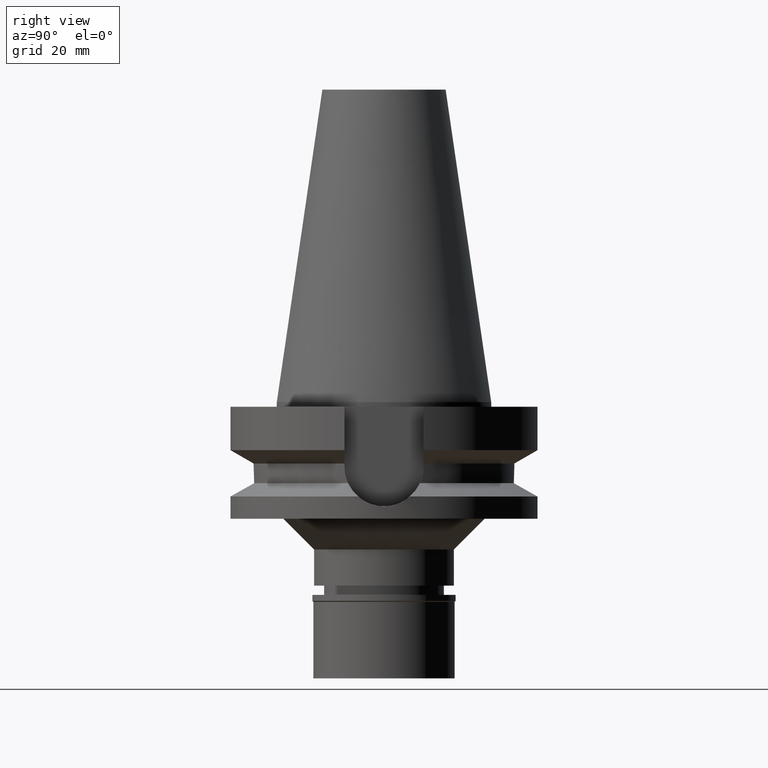
[diagram: clean part render]
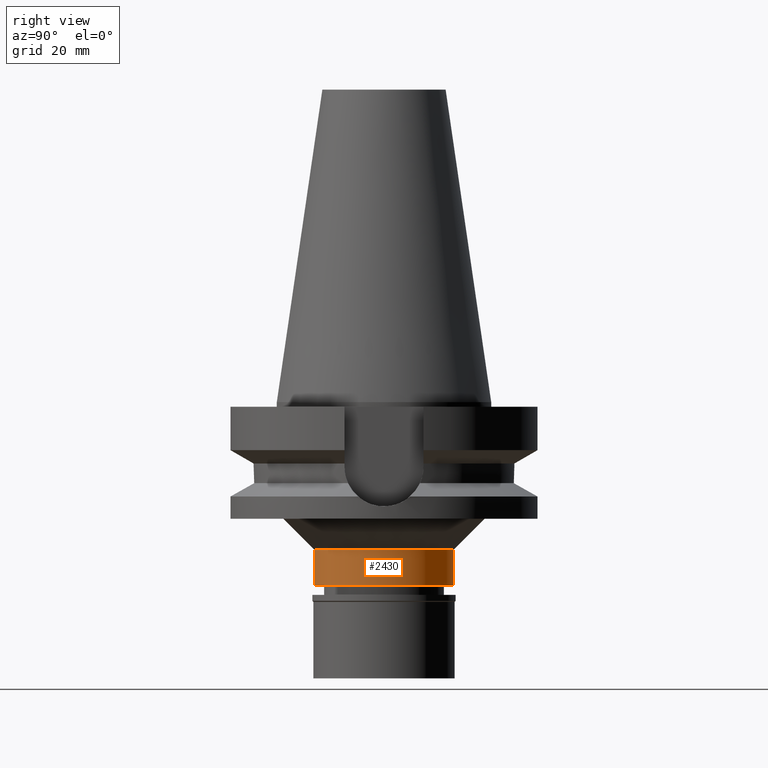
[diagram: same view with one face highlighted and labeled with its STEP entity id]
A machine part, right view. The second image highlights one B-rep face of the part: STEP entity #2430.
In plain terms, the highlighted cylindrical surface (partial cylindrical patch) has radius 22.75 mm, axis along (0, 0, -1).
Its self-contained STEP definition (entity closure, byte-faithful):
#55 = CARTESIAN_POINT ( 'NONE',  ( 0.0000000000000000000, 22.75000000000000000, -59.79999999999999716 ) ) ;
#96 = DIRECTION ( 'NONE',  ( 0.0000000000000000000, -1.000000000000000000, 0.0000000000000000000 ) ) ;
#115 = CARTESIAN_POINT ( 'NONE',  ( 0.0000000000000000000, -22.75000000000000000, -59.79999999999999716 ) ) ;
#116 = EDGE_CURVE ( 'NONE', #140, #2471, #1651, .T. ) ;
#140 = VERTEX_POINT ( 'NONE', #2601 ) ;
#213 = ORIENTED_EDGE ( 'NONE', *, *, #3009, .T. ) ;
#311 = VERTEX_POINT ( 'NONE', #115 ) ;
#406 = LINE ( 'NONE', #2068, #2109 ) ;
#519 = VECTOR ( 'NONE', #839, 1000.000000000000000 ) ;
#562 = EDGE_CURVE ( 'NONE', #2471, #311, #406, .T. ) ;
#589 = CARTESIAN_POINT ( 'NONE',  ( 0.0000000000000000000, 22.75000000000000000, -48.00000000000000000 ) ) ;
#698 = EDGE_CURVE ( 'NONE', #140, #1531, #1588, .T. ) ;
#831 = AXIS2_PLACEMENT_3D ( 'NONE', #2673, #2210, #96 ) ;
#839 = DIRECTION ( 'NONE',  ( 0.0000000000000000000, 0.0000000000000000000, -1.000000000000000000 ) ) ;
#1118 = ORIENTED_EDGE ( 'NONE', *, *, #562, .T. ) ;
#1142 = DIRECTION ( 'NONE',  ( 0.0000000000000000000, 0.0000000000000000000, -1.000000000000000000 ) ) ;
#1247 = CYLINDRICAL_SURFACE ( 'NONE', #831, 22.75000000000000000 ) ;
#1360 = AXIS2_PLACEMENT_3D ( 'NONE', #1797, #2510, #2966 ) ;
#1531 = VERTEX_POINT ( 'NONE', #55 ) ;
#1583 = EDGE_LOOP ( 'NONE', ( #1923, #1118, #213, #1947 ) ) ;
#1588 = LINE ( 'NONE', #589, #519 ) ;
#1651 = CIRCLE ( 'NONE', #2362, 22.75000000000000000 ) ;
#1797 = CARTESIAN_POINT ( 'NONE',  ( 0.0000000000000000000, 2.582045311321999724E-14, -59.79999999999999716 ) ) ;
#1898 = CARTESIAN_POINT ( 'NONE',  ( 0.0000000000000000000, 0.0000000000000000000, -48.00000000000000000 ) ) ;
#1923 = ORIENTED_EDGE ( 'NONE', *, *, #116, .T. ) ;
#1947 = ORIENTED_EDGE ( 'NONE', *, *, #698, .F. ) ;
#1949 = CARTESIAN_POINT ( 'NONE',  ( 0.0000000000000000000, -22.75000000000000000, -48.00000000000000000 ) ) ;
#2068 = CARTESIAN_POINT ( 'NONE',  ( 0.0000000000000000000, -22.75000000000000000, -48.00000000000000000 ) ) ;
#2109 = VECTOR ( 'NONE', #1142, 1000.000000000000000 ) ;
#2210 = DIRECTION ( 'NONE',  ( 0.0000000000000000000, 0.0000000000000000000, -1.000000000000000000 ) ) ;
#2360 = DIRECTION ( 'NONE',  ( 0.0000000000000000000, 0.0000000000000000000, -1.000000000000000000 ) ) ;
#2362 = AXIS2_PLACEMENT_3D ( 'NONE', #1898, #2360, #2856 ) ;
#2430 = ADVANCED_FACE ( 'NONE', ( #2881 ), #1247, .T. ) ;
#2471 = VERTEX_POINT ( 'NONE', #1949 ) ;
#2510 = DIRECTION ( 'NONE',  ( 0.0000000000000000000, 0.0000000000000000000, 1.000000000000000000 ) ) ;
#2513 = CIRCLE ( 'NONE', #1360, 22.75000000000000000 ) ;
#2601 = CARTESIAN_POINT ( 'NONE',  ( 0.0000000000000000000, 22.75000000000000000, -48.00000000000000000 ) ) ;
#2673 = CARTESIAN_POINT ( 'NONE',  ( 0.0000000000000000000, 2.582045311321999724E-14, 110.8399999999999892 ) ) ;
#2856 = DIRECTION ( 'NONE',  ( 0.0000000000000000000, 1.000000000000000000, 0.0000000000000000000 ) ) ;
#2881 = FACE_OUTER_BOUND ( 'NONE', #1583, .T. ) ;
#2966 = DIRECTION ( 'NONE',  ( 0.0000000000000000000, -1.000000000000000000, 0.0000000000000000000 ) ) ;
#3009 = EDGE_CURVE ( 'NONE', #311, #1531, #2513, .T. ) ;